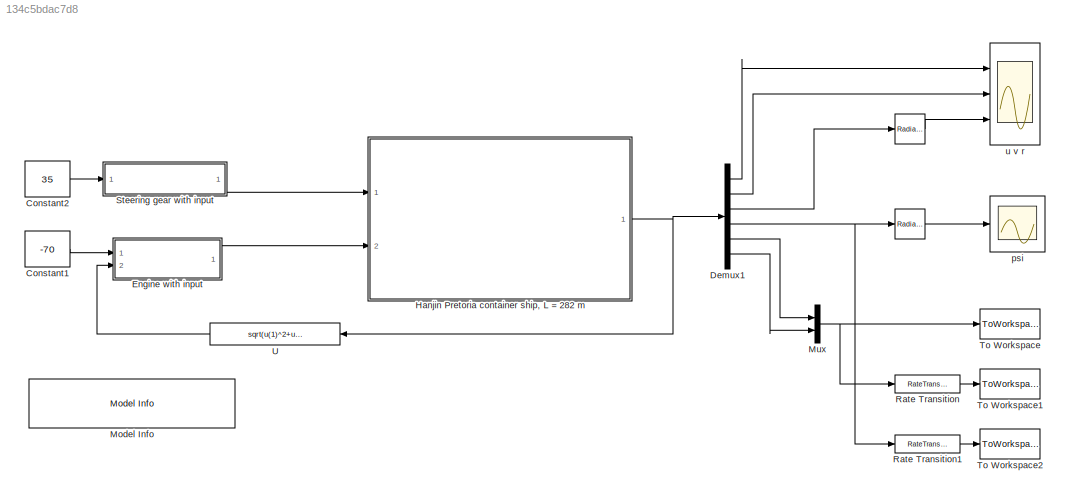
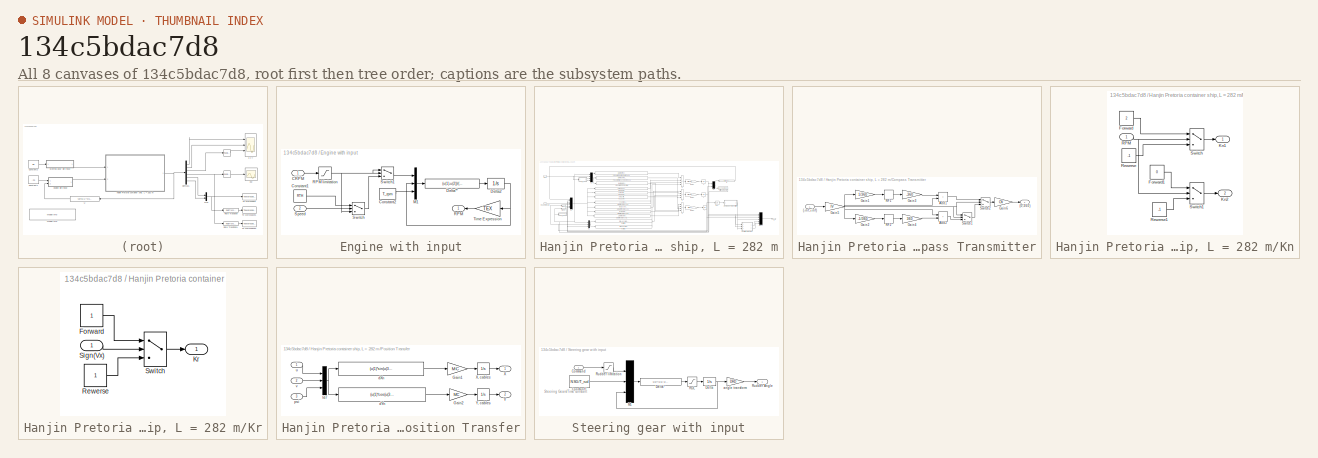
[diagram: thumbnail index - all 8 canvases of the model, root first then tree order]
MODEL slx_134c5bdac7d8
KIND model
CONFIG AbsTol = 1e-5
CONFIG EnableMultiTasking = on
CONFIG FixedStep = 0.5
CONFIG InitFcn = dataPretoria;
CONFIG MaxStep = auto
CONFIG MinStep = auto
CONFIG PreLoadFcn = TT=40;\n
CONFIG RelTol = 1e-6
CONFIG SampleTimeConstraint = Unconstrained
CONFIG SolverName = ode4
CONFIG StartTime = 0.0
CONFIG StopFcn = shipsOrient;\n\n\n
CONFIG StopTime = 1500
BLOCK [Reference]    REF=simulink_extras/Transformations/Radians
to Degrees
  Ports = [1, 1]
  SourceBlock = simulink_extras/Transformations/Radians\nto Degrees
  SourceProductBaseCode = SL
  SourceType = RadiansToDegrees
BLOCK [Reference]        REF=simulink_extras/Transformations/Radians
to Degrees
  Ports = [1, 1]
  SourceBlock = simulink_extras/Transformations/Radians\nto Degrees
  SourceProductBaseCode = SL
  SourceType = RadiansToDegrees
BLOCK [Constant] Constant1
  Value = -70
BLOCK [Constant] Constant2
  Value = 35
BLOCK [Demux] Demux1
  Outputs = 6
  Ports = [1, 6]
BLOCK [SubSystem] Engine with input
  AncestorBlock = Maneuvering/Control complexes/Engine with input
  Ports = [2, 1]
  RequestExecContextInheritance = off
BLOCK [Inport] Engine with input/CRPM
BLOCK [Constant] Engine with input/Constant1
  Value = RTH
BLOCK [Constant] Engine with input/Constant2
  Value = T_rpm
BLOCK [Fcn] Engine with input/Delta**
  Expr = (u(1)-u(2))/(u(3)*60/u(2))
BLOCK [Integrator] Engine with input/Delta2
  InitialCondition = IRPM
  LimitOutput = on
  LowerSaturationLimit = MinRPM
  Ports = [1, 1]
  UpperSaturationLimit = MaxRPM
BLOCK [Mux] Engine with input/M1
  DisplayOption = bar
  Inputs = 3
  Ports = [3, 1]
BLOCK [Outport] Engine with input/RPM
BLOCK [Saturate] Engine with input/RPM limitation
  LowerLimit = MinRPM
  UpperLimit = MaxRPM
BLOCK [Inport] Engine with input/Speed
  Port = 2
BLOCK [Switch] Engine with input/Switch
  InputSameDT = off
  SaturateOnIntegerOverflow = off
  Threshold = RevV
BLOCK [Switch] Engine with input/Switch1
  InputSameDT = off
  SaturateOnIntegerOverflow = off
BLOCK [Gain] Engine with input/Time Expression
  Gain = TEX
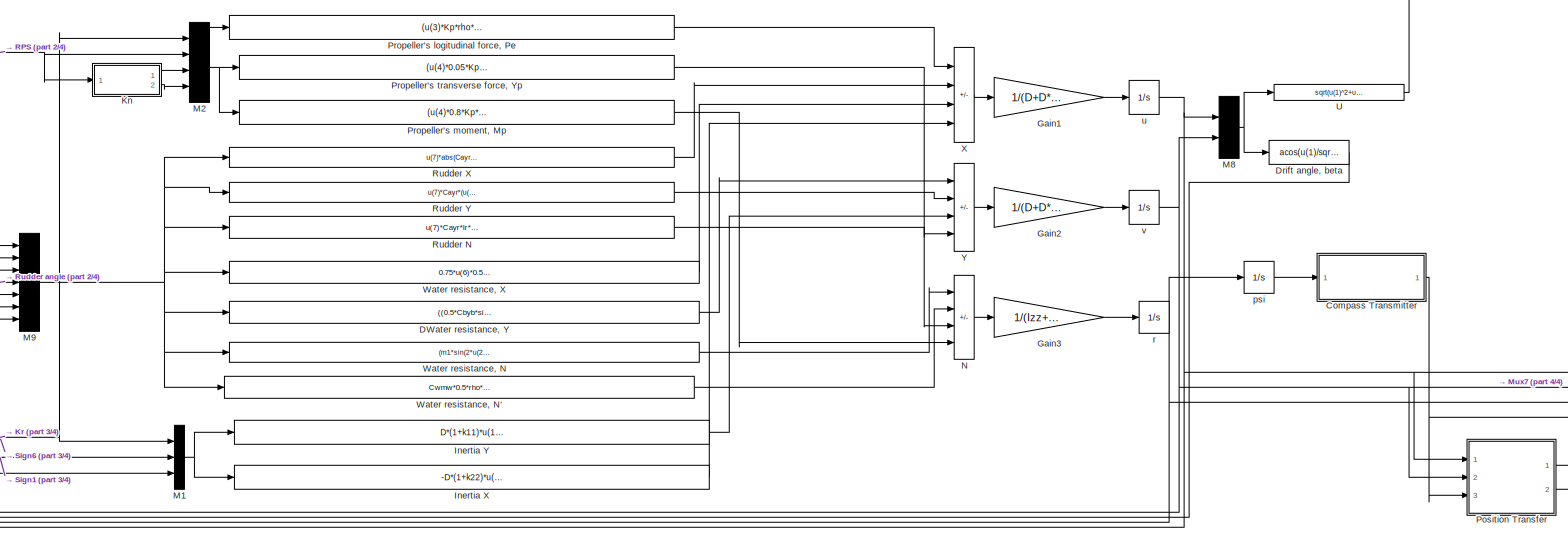
[diagram: Hanjin Pretoria container ship, L = 282 m - part 1/4, most of the canvas]
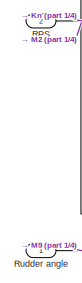
[diagram: Hanjin Pretoria container ship, L = 282 m - part 2/4, middle left region]
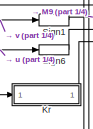
[diagram: Hanjin Pretoria container ship, L = 282 m - part 3/4, middle left region]
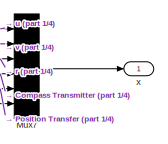
[diagram: Hanjin Pretoria container ship, L = 282 m - part 4/4, bottom right region]
BLOCK [SubSystem] Hanjin Pretoria container ship, L = 282 m
  Ports = [2, 1]
  RequestExecContextInheritance = off
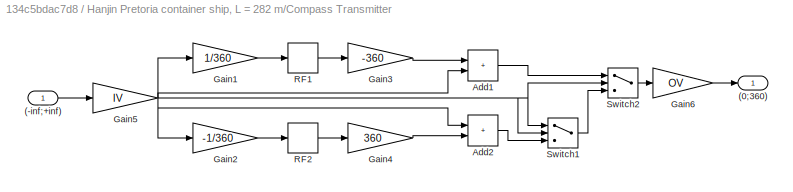
BLOCK [SubSystem] Hanjin Pretoria container ship, L = 282 m/Compass Transmitter
  Ports = [1, 1]
  RequestExecContextInheritance = off
BLOCK [Inport] Hanjin Pretoria container ship, L = 282 m/Compass Transmitter/(-inf;+inf)
BLOCK [Outport] Hanjin Pretoria container ship, L = 282 m/Compass Transmitter/(0;360)
BLOCK [Sum] Hanjin Pretoria container ship, L = 282 m/Compass Transmitter/Add1
  IconShape = rectangular
  Ports = [2, 1]
BLOCK [Sum] Hanjin Pretoria container ship, L = 282 m/Compass Transmitter/Add2
  IconShape = rectangular
  Ports = [2, 1]
BLOCK [Gain] Hanjin Pretoria container ship, L = 282 m/Compass Transmitter/Gain1
  Gain = 1/360
BLOCK [Gain] Hanjin Pretoria container ship, L = 282 m/Compass Transmitter/Gain2
  Gain = -1/360
BLOCK [Gain] Hanjin Pretoria container ship, L = 282 m/Compass Transmitter/Gain3
  Gain = -360
BLOCK [Gain] Hanjin Pretoria container ship, L = 282 m/Compass Transmitter/Gain4
  Gain = 360
BLOCK [Gain] Hanjin Pretoria container ship, L = 282 m/Compass Transmitter/Gain5
  Gain = IV
BLOCK [Gain] Hanjin Pretoria container ship, L = 282 m/Compass Transmitter/Gain6
  Gain = OV
BLOCK [Rounding] Hanjin Pretoria container ship, L = 282 m/Compass Transmitter/RF1
BLOCK [Rounding] Hanjin Pretoria container ship, L = 282 m/Compass Transmitter/RF2
  Operator = ceil
BLOCK [Switch] Hanjin Pretoria container ship, L = 282 m/Compass Transmitter/Switch1
  InputSameDT = off
  SaturateOnIntegerOverflow = off
BLOCK [Switch] Hanjin Pretoria container ship, L = 282 m/Compass Transmitter/Switch2
  Criteria = u2 > Threshold
  InputSameDT = off
  SaturateOnIntegerOverflow = off
  Threshold = 360
BLOCK [Fcn] Hanjin Pretoria container ship, L = 282 m/DWater resistance, Y
  Expr = ((0.5*Cbyb*sin(2*u(2))*cos(u(2))+u(5)*c2*sin(u(2))^2+u(5)*c3*sin(2*u(2))^4))*0.5*rho*(u(1)^2)*Ald
BLOCK [Fcn] Hanjin Pretoria container ship, L = 282 m/Drift angle, beta
  Expr = acos(u(1)/sqrt(u(1)^2+u(2)^2))*(u(2)/abs(u(2)))
BLOCK [Gain] Hanjin Pretoria container ship, L = 282 m/Gain1
  Gain = 1/(D+D*k11)
BLOCK [Gain] Hanjin Pretoria container ship, L = 282 m/Gain2
  Gain = 1/(D+D*k22)
BLOCK [Gain] Hanjin Pretoria container ship, L = 282 m/Gain3
  Gain = 1/(Izz+Izz*k66)
BLOCK [Fcn] Hanjin Pretoria container ship, L = 282 m/Inertia X
  Expr = -D*(1+k22)*u(2)*u(3)
BLOCK [Fcn] Hanjin Pretoria container ship, L = 282 m/Inertia Y
  Expr = D*(1+k11)*u(1)*u(3)
BLOCK [SubSystem] Hanjin Pretoria container ship, L = 282 m/Kn
  Ports = [1, 2]
  RequestExecContextInheritance = off
BLOCK [Constant] Hanjin Pretoria container ship, L = 282 m/Kn/Forward
  Value = 2
BLOCK [Constant] Hanjin Pretoria container ship, L = 282 m/Kn/Forward1
  Value = 0
BLOCK [Outport] Hanjin Pretoria container ship, L = 282 m/Kn/Kn1
BLOCK [Outport] Hanjin Pretoria container ship, L = 282 m/Kn/Kn2
  Port = 2
BLOCK [Inport] Hanjin Pretoria container ship, L = 282 m/Kn/RPM
BLOCK [Constant] Hanjin Pretoria container ship, L = 282 m/Kn/Rewerse
  Value = -1
BLOCK [Constant] Hanjin Pretoria container ship, L = 282 m/Kn/Rewerse1
  Value = -1
BLOCK [Switch] Hanjin Pretoria container ship, L = 282 m/Kn/Switch
  Criteria = u2 > Threshold
  InputSameDT = off
  SaturateOnIntegerOverflow = off
BLOCK [Switch] Hanjin Pretoria container ship, L = 282 m/Kn/Switch1
  Criteria = u2 > Threshold
  InputSameDT = off
  SaturateOnIntegerOverflow = off
BLOCK [SubSystem] Hanjin Pretoria container ship, L = 282 m/Kr
  Ports = [1, 1]
  RequestExecContextInheritance = off
BLOCK [Constant] Hanjin Pretoria container ship, L = 282 m/Kr/Forward
BLOCK [Outport] Hanjin Pretoria container ship, L = 282 m/Kr/Kr
BLOCK [Constant] Hanjin Pretoria container ship, L = 282 m/Kr/Rewerse
BLOCK [Inport] Hanjin Pretoria container ship, L = 282 m/Kr/Sign(Vx)
BLOCK [Switch] Hanjin Pretoria container ship, L = 282 m/Kr/Switch
  Criteria = u2 > Threshold
  InputSameDT = off
  SaturateOnIntegerOverflow = off
BLOCK [Mux] Hanjin Pretoria container ship, L = 282 m/M1
  DisplayOption = bar
  Inputs = 3
  Ports = [3, 1]
BLOCK [Mux] Hanjin Pretoria container ship, L = 282 m/M2
  DisplayOption = bar
  Ports = [4, 1]
BLOCK [Mux] Hanjin Pretoria container ship, L = 282 m/M8
  DisplayOption = bar
  Inputs = 2
  Ports = [2, 1]
BLOCK [Mux] Hanjin Pretoria container ship, L = 282 m/M9
  DisplayOption = bar
  Inputs = 7
  Ports = [7, 1]
BLOCK [Mux] Hanjin Pretoria container ship, L = 282 m/Mux7
  DisplayOption = bar
  Inputs = 6
  Ports = [6, 1]
BLOCK [Sum] Hanjin Pretoria container ship, L = 282 m/N
  IconShape = rectangular
  InputSameDT = on
  Inputs = +-++
  OutDataTypeStr = Inherit: Same as first input
  Ports = [4, 1]
  SaturateOnIntegerOverflow = on
BLOCK [SubSystem] Hanjin Pretoria container ship, L = 282 m/Position Transfer
  Ports = [3, 2]
  RequestExecContextInheritance = off
BLOCK [Gain] Hanjin Pretoria container ship, L = 282 m/Position Transfer/Gain1
  Gain = MC
BLOCK [Gain] Hanjin Pretoria container ship, L = 282 m/Position Transfer/Gain2
  Gain = MC
BLOCK [Mux] Hanjin Pretoria container ship, L = 282 m/Position Transfer/Id7
  DisplayOption = bar
  Inputs = 3
  Ports = [3, 1]
BLOCK [Outport] Hanjin Pretoria container ship, L = 282 m/Position Transfer/X
BLOCK [Integrator] Hanjin Pretoria container ship, L = 282 m/Position Transfer/X, cables
  InitialCondition = Xin
  Ports = [1, 1]
BLOCK [Outport] Hanjin Pretoria container ship, L = 282 m/Position Transfer/Y
  Port = 2
BLOCK [Integrator] Hanjin Pretoria container ship, L = 282 m/Position Transfer/Y, cables
  InitialCondition = Yin
  Ports = [1, 1]
BLOCK [Fcn] Hanjin Pretoria container ship, L = 282 m/Position Transfer/dXn
  Expr = (u(1)*sin(u(3))-u(2)*cos(u(3)))
BLOCK [Fcn] Hanjin Pretoria container ship, L = 282 m/Position Transfer/dYn
  Expr = (u(1)*cos(u(3))+u(2)*sin(u(3)))
BLOCK [Inport] Hanjin Pretoria container ship, L = 282 m/Position Transfer/psi
  Port = 3
BLOCK [Inport] Hanjin Pretoria container ship, L = 282 m/Position Transfer/u
BLOCK [Inport] Hanjin Pretoria container ship, L = 282 m/Position Transfer/v
  Port = 2
BLOCK [Fcn] Hanjin Pretoria container ship, L = 282 m/Propeller's logitudinal force, Pe
  Expr = (u(3)*Kp*rho*(u(2)^2)*Dp^4)
BLOCK [Fcn] Hanjin Pretoria container ship, L = 282 m/Propeller's moment, Mp
  Expr = (u(4)*0.8*Kp*rho*(u(2)^2)*Dp^5)
BLOCK [Fcn] Hanjin Pretoria container ship, L = 282 m/Propeller's transverse force, Yp
  Expr = (u(4)*0.05*Kp*rho*(u(2)^2)*Dp^4)
BLOCK [Inport] Hanjin Pretoria container ship, L = 282 m/RPS
  Port = 2
BLOCK [Fcn] Hanjin Pretoria container ship, L = 282 m/Rudder N
  Expr = u(7)*Cayr*Ir*(u(4)-Xe*(u(2)+Irm*L*u(3)/u(1)))*0.5*rho*(u(1)^2)*Are
BLOCK [Fcn] Hanjin Pretoria container ship, L = 282 m/Rudder X
  Expr = u(7)*abs(Cayr*(u(4)-Xe*(u(2)+Irm*L*u(3)/u(1)))*0.5*rho*(u(1)^2)*Are*tan(u(4)))
BLOCK [Fcn] Hanjin Pretoria container ship, L = 282 m/Rudder Y
  Expr = u(7)*Cayr*(u(4)-Xe*(u(2)+Irm*L*u(3)/u(1)))*0.5*rho*(u(1)^2)*Are
BLOCK [Inport] Hanjin Pretoria container ship, L = 282 m/Rudder angle
BLOCK [Signum] Hanjin Pretoria container ship, L = 282 m/Sign1
BLOCK [Signum] Hanjin Pretoria container ship, L = 282 m/Sign6
BLOCK [Fcn] Hanjin Pretoria container ship, L = 282 m/U
  Expr = sqrt(u(1)^2+u(2)^2)
BLOCK [Fcn] Hanjin Pretoria container ship, L = 282 m/Water resistance, N
  Expr = (m1*sin(2*u(2))+m2*sin(u(2))+m3*sin(2*u(2))^3+u(5)*m4*sin(2*u(2))^4)*0.5*rho*(u(1)^2)*Ald*L
BLOCK [Fcn] Hanjin Pretoria container ship, L = 282 m/Water resistance, N'
  Expr = Cwmw*0.5*rho*u(1)*Ald*u(3)*L^2
BLOCK [Fcn] Hanjin Pretoria container ship, L = 282 m/Water resistance, X
  Expr = 0.75*u(6)*0.5*Cx0*abs(cos(u(2)))*rho*Ald*(u(1)^2)
BLOCK [Sum] Hanjin Pretoria container ship, L = 282 m/X
  IconShape = rectangular
  InputSameDT = on
  Inputs = +--+
  OutDataTypeStr = Inherit: Same as first input
  Ports = [4, 1]
  SaturateOnIntegerOverflow = on
BLOCK [Sum] Hanjin Pretoria container ship, L = 282 m/Y
  IconShape = rectangular
  InputSameDT = on
  Inputs = -+++
  OutDataTypeStr = Inherit: Same as first input
  Ports = [4, 1]
  SaturateOnIntegerOverflow = on
BLOCK [Integrator] Hanjin Pretoria container ship, L = 282 m/psi
  AbsoluteTolerance = 1
  InitialCondition = IC(4)
  LowerSaturationLimit = -0.87266
  Ports = [1, 1]
  UpperSaturationLimit = 0.87266
BLOCK [Integrator] Hanjin Pretoria container ship, L = 282 m/r
  AbsoluteTolerance = 1
  InitialCondition = IC(3)
  LowerSaturationLimit = -0.87266
  Ports = [1, 1]
  UpperSaturationLimit = 0.87266
BLOCK [Integrator] Hanjin Pretoria container ship, L = 282 m/u
  AbsoluteTolerance = 1
  InitialCondition = IC(1)
  LowerSaturationLimit = -1
  Ports = [1, 1]
  UpperSaturationLimit = 7.5
BLOCK [Integrator] Hanjin Pretoria container ship, L = 282 m/v
  AbsoluteTolerance = 1
  InitialCondition = IC(2)
  LowerSaturationLimit = -1
  Ports = [1, 1]
  UpperSaturationLimit = 7.5
BLOCK [Outport] Hanjin Pretoria container ship, L = 282 m/x
BLOCK [Reference] Model Info  REF=simulink/Model-Wide
Utilities/Model Info
  Ports = []
  SourceBlock = simulink/Model-Wide\nUtilities/Model Info
  SourceProductBaseCode = SL
  SourceType = CMBlock
BLOCK [Mux] Mux
  DisplayOption = bar
  Inputs = 2
  Ports = [2, 1]
BLOCK [RateTransition] Rate Transition
  OutPortSampleTime = TT
BLOCK [RateTransition] Rate Transition1
  OutPortSampleTime = TT
BLOCK [SubSystem] Steering gear with input
  AncestorBlock = Maneuvering/Control complexes/Steering Gear with input
  Ports = [1, 1]
  RequestExecContextInheritance = off
BLOCK [Inport] Steering gear with input/Command
BLOCK [Constant] Steering gear with input/Constant1
  Value = NSG/T_rud
BLOCK [Integrator] Steering gear with input/Delta
  InitialCondition = IRud
  LimitOutput = on
  LowerSaturationLimit = -MR
  Ports = [1, 1]
  UpperSaturationLimit = MR
BLOCK [Fcn] Steering gear with input/Delta*
  Expr = u(2)*(u(1)-u(3))
  SampleTime = ST
BLOCK [Mux] Steering gear with input/M1
  DisplayOption = bar
  Inputs = 3
  Ports = [3, 1]
BLOCK [Saturate] Steering gear with input/RDL
  LowerLimit = -MRS
  SampleTime = ST
  UpperLimit = MRS
BLOCK [Outport] Steering gear with input/Rudder Angle
BLOCK [Saturate] Steering gear with input/Rudder limitation
  LowerLimit = -MR
  SampleTime = ST
  UpperLimit = MR
BLOCK [Gain] Steering gear with input/angle transform
  Gain = DRD
  SampleTime = ST
BLOCK [ToWorkspace] To Workspace
  MaxDataPoints = inf
  Ports = [1]
  SampleTime = -1
  VariableName = XY
BLOCK [ToWorkspace] To Workspace1
  MaxDataPoints = inf
  Ports = [1]
  SampleTime = TT
  VariableName = XY1
BLOCK [ToWorkspace] To Workspace2
  MaxDataPoints = inf
  Ports = [1]
  SampleTime = TT
  VariableName = K
BLOCK [Fcn] U
  Expr = sqrt(u(1)^2+u(2)^2)
  NameLocation = top
BLOCK [Scope] psi
  Floating = off
  NumInputPorts = 1
  Ports = [1]
  ScopeSpecificationString = Simulink.scopes.TimeScopeBlockCfg('CurrentConfiguration', extmgr.ConfigurationSet(extmgr.Configuration('Core','General UI',true),extmgr.Configuration('Core','Source UI',true),extmgr.Configuration('Sources','WiredSimulink',true,'DataLoggingSaveFormat','StructureWithTime','DataLoggingLimitDataPoints',true,'DataLoggingDecimation','1','DataLoggingDecimateData',true),extmgr.Configuration('Visuals','Tim...<+1695ch>
BLOCK [Scope] u v r
  Floating = off
  NumInputPorts = 3
  Ports = [3]
  ScopeSpecificationString = Simulink.scopes.TimeScopeBlockCfg('CurrentConfiguration', extmgr.ConfigurationSet(extmgr.Configuration('Core','General UI',true),extmgr.Configuration('Core','Source UI',true),extmgr.Configuration('Sources','WiredSimulink',true,'DataLoggingVariableName','ScopeData1','DataLoggingSaveFormat','StructureWithTime','DataLoggingLimitDataPoints',true,'DataLoggingDecimation','1','DataLoggingDecimateData',tr...<+2981ch>
ANNOTATION Steering gear with input: Steering Gears/Time constant
LINE      :1 -> psi:1
LINE  :1 -> u v r:3
LINE Constant1:1 -> Engine with input:1
LINE Constant2:1 -> Steering gear with input:1
LINE Demux1:1 -> u v r:1
LINE Demux1:2 -> u v r:2
LINE Demux1:3 ->  :1
NET Demux1:4 ->      :1, Rate Transition1:1
LINE Demux1:5 -> Mux:1
LINE Demux1:6 -> Mux:2
LINE Engine with input:1 -> Hanjin Pretoria container ship, L = 282 m:2
LINE Hanjin Pretoria container ship, L = 282 m/Compass Transmitter/(-inf;+inf):1 -> Hanjin Pretoria container ship, L = 282 m/Compass Transmitter/Gain5:1
LINE Hanjin Pretoria container ship, L = 282 m/Compass Transmitter/Add1:1 -> Hanjin Pretoria container ship, L = 282 m/Compass Transmitter/Switch2:1
LINE Hanjin Pretoria container ship, L = 282 m/Compass Transmitter/Add2:1 -> Hanjin Pretoria container ship, L = 282 m/Compass Transmitter/Switch1:3
LINE Hanjin Pretoria container ship, L = 282 m/Compass Transmitter/Gain1:1 -> Hanjin Pretoria container ship, L = 282 m/Compass Transmitter/RF1:1
LINE Hanjin Pretoria container ship, L = 282 m/Compass Transmitter/Gain2:1 -> Hanjin Pretoria container ship, L = 282 m/Compass Transmitter/RF2:1
LINE Hanjin Pretoria container ship, L = 282 m/Compass Transmitter/Gain3:1 -> Hanjin Pretoria container ship, L = 282 m/Compass Transmitter/Add1:1
LINE Hanjin Pretoria container ship, L = 282 m/Compass Transmitter/Gain4:1 -> Hanjin Pretoria container ship, L = 282 m/Compass Transmitter/Add2:2
NET Hanjin Pretoria container ship, L = 282 m/Compass Transmitter/Gain5:1 -> Hanjin Pretoria container ship, L = 282 m/Compass Transmitter/Add1:2, Hanjin Pretoria container ship, L = 282 m/Compass Transmitter/Add2:1, Hanjin Pretoria container ship, L = 282 m/Compass Transmitter/Gain1:1, Hanjin Pretoria container ship, L = 282 m/Compass Transmitter/Gain2:1, Hanjin Pretoria container ship, L = 282 m/Compass Transmitter/Switch1:1, Hanjin Pretoria container ship, L = 282 m/Compass Transmitter/Switch1:2, Hanjin Pretoria container ship, L = 282 m/Compass Transmitter/Switch2:2
LINE Hanjin Pretoria container ship, L = 282 m/Compass Transmitter/Gain6:1 -> Hanjin Pretoria container ship, L = 282 m/Compass Transmitter/(0;360):1
LINE Hanjin Pretoria container ship, L = 282 m/Compass Transmitter/RF1:1 -> Hanjin Pretoria container ship, L = 282 m/Compass Transmitter/Gain3:1
LINE Hanjin Pretoria container ship, L = 282 m/Compass Transmitter/RF2:1 -> Hanjin Pretoria container ship, L = 282 m/Compass Transmitter/Gain4:1
LINE Hanjin Pretoria container ship, L = 282 m/Compass Transmitter/Switch1:1 -> Hanjin Pretoria container ship, L = 282 m/Compass Transmitter/Switch2:3
LINE Hanjin Pretoria container ship, L = 282 m/Compass Transmitter/Switch2:1 -> Hanjin Pretoria container ship, L = 282 m/Compass Transmitter/Gain6:1
NET Hanjin Pretoria container ship, L = 282 m/Compass Transmitter:1 -> Hanjin Pretoria container ship, L = 282 m/Mux7:4, Hanjin Pretoria container ship, L = 282 m/Position Transfer:3
LINE Hanjin Pretoria container ship, L = 282 m/DWater resistance, Y:1 -> Hanjin Pretoria container ship, L = 282 m/Y:1
LINE Hanjin Pretoria container ship, L = 282 m/Drift angle, beta:1 -> Hanjin Pretoria container ship, L = 282 m/M9:2
LINE Hanjin Pretoria container ship, L = 282 m/Gain1:1 -> Hanjin Pretoria container ship, L = 282 m/u:1
LINE Hanjin Pretoria container ship, L = 282 m/Gain2:1 -> Hanjin Pretoria container ship, L = 282 m/v:1
LINE Hanjin Pretoria container ship, L = 282 m/Gain3:1 -> Hanjin Pretoria container ship, L = 282 m/r:1
LINE Hanjin Pretoria container ship, L = 282 m/Inertia X:1 -> Hanjin Pretoria container ship, L = 282 m/X:4
LINE Hanjin Pretoria container ship, L = 282 m/Inertia Y:1 -> Hanjin Pretoria container ship, L = 282 m/Y:3
LINE Hanjin Pretoria container ship, L = 282 m/Kn/Forward1:1 -> Hanjin Pretoria container ship, L = 282 m/Kn/Switch1:1
LINE Hanjin Pretoria container ship, L = 282 m/Kn/Forward:1 -> Hanjin Pretoria container ship, L = 282 m/Kn/Switch:1
NET Hanjin Pretoria container ship, L = 282 m/Kn/RPM:1 -> Hanjin Pretoria container ship, L = 282 m/Kn/Switch1:2, Hanjin Pretoria container ship, L = 282 m/Kn/Switch:2
LINE Hanjin Pretoria container ship, L = 282 m/Kn/Rewerse1:1 -> Hanjin Pretoria container ship, L = 282 m/Kn/Switch1:3
LINE Hanjin Pretoria container ship, L = 282 m/Kn/Rewerse:1 -> Hanjin Pretoria container ship, L = 282 m/Kn/Switch:3
LINE Hanjin Pretoria container ship, L = 282 m/Kn/Switch1:1 -> Hanjin Pretoria container ship, L = 282 m/Kn/Kn2:1
LINE Hanjin Pretoria container ship, L = 282 m/Kn/Switch:1 -> Hanjin Pretoria container ship, L = 282 m/Kn/Kn1:1
LINE Hanjin Pretoria container ship, L = 282 m/Kn:1 -> Hanjin Pretoria container ship, L = 282 m/M2:3
LINE Hanjin Pretoria container ship, L = 282 m/Kn:2 -> Hanjin Pretoria container ship, L = 282 m/M2:4
LINE Hanjin Pretoria container ship, L = 282 m/Kr/Forward:1 -> Hanjin Pretoria container ship, L = 282 m/Kr/Switch:1
LINE Hanjin Pretoria container ship, L = 282 m/Kr/Rewerse:1 -> Hanjin Pretoria container ship, L = 282 m/Kr/Switch:3
LINE Hanjin Pretoria container ship, L = 282 m/Kr/Sign(Vx):1 -> Hanjin Pretoria container ship, L = 282 m/Kr/Switch:2
LINE Hanjin Pretoria container ship, L = 282 m/Kr/Switch:1 -> Hanjin Pretoria container ship, L = 282 m/Kr/Kr:1
LINE Hanjin Pretoria container ship, L = 282 m/Kr:1 -> Hanjin Pretoria container ship, L = 282 m/M9:7
NET Hanjin Pretoria container ship, L = 282 m/M1:1 -> Hanjin Pretoria container ship, L = 282 m/Inertia X:1, Hanjin Pretoria container ship, L = 282 m/Inertia Y:1
NET Hanjin Pretoria container ship, L = 282 m/M2:1 -> Hanjin Pretoria container ship, L = 282 m/Propeller's logitudinal force, Pe:1, Hanjin Pretoria container ship, L = 282 m/Propeller's moment, Mp:1, Hanjin Pretoria container ship, L = 282 m/Propeller's transverse force, Yp:1
NET Hanjin Pretoria container ship, L = 282 m/M8:1 -> Hanjin Pretoria container ship, L = 282 m/Drift angle, beta:1, Hanjin Pretoria container ship, L = 282 m/U:1
NET Hanjin Pretoria container ship, L = 282 m/M9:1 -> Hanjin Pretoria container ship, L = 282 m/DWater resistance, Y:1, Hanjin Pretoria container ship, L = 282 m/Rudder N:1, Hanjin Pretoria container ship, L = 282 m/Rudder X:1, Hanjin Pretoria container ship, L = 282 m/Rudder Y:1, Hanjin Pretoria container ship, L = 282 m/Water resistance, N':1, Hanjin Pretoria container ship, L = 282 m/Water resistance, N:1, Hanjin Pretoria container ship, L = 282 m/Water resistance, X:1
LINE Hanjin Pretoria container ship, L = 282 m/Mux7:1 -> Hanjin Pretoria container ship, L = 282 m/x:1
LINE Hanjin Pretoria container ship, L = 282 m/N:1 -> Hanjin Pretoria container ship, L = 282 m/Gain3:1
LINE Hanjin Pretoria container ship, L = 282 m/Position Transfer/Gain1:1 -> Hanjin Pretoria container ship, L = 282 m/Position Transfer/X, cables:1
LINE Hanjin Pretoria container ship, L = 282 m/Position Transfer/Gain2:1 -> Hanjin Pretoria container ship, L = 282 m/Position Transfer/Y, cables:1
NET Hanjin Pretoria container ship, L = 282 m/Position Transfer/Id7:1 -> Hanjin Pretoria container ship, L = 282 m/Position Transfer/dXn:1, Hanjin Pretoria container ship, L = 282 m/Position Transfer/dYn:1
LINE Hanjin Pretoria container ship, L = 282 m/Position Transfer/X, cables:1 -> Hanjin Pretoria container ship, L = 282 m/Position Transfer/X:1
LINE Hanjin Pretoria container ship, L = 282 m/Position Transfer/Y, cables:1 -> Hanjin Pretoria container ship, L = 282 m/Position Transfer/Y:1
LINE Hanjin Pretoria container ship, L = 282 m/Position Transfer/dXn:1 -> Hanjin Pretoria container ship, L = 282 m/Position Transfer/Gain1:1
LINE Hanjin Pretoria container ship, L = 282 m/Position Transfer/dYn:1 -> Hanjin Pretoria container ship, L = 282 m/Position Transfer/Gain2:1
LINE Hanjin Pretoria container ship, L = 282 m/Position Transfer/psi:1 -> Hanjin Pretoria container ship, L = 282 m/Position Transfer/Id7:3
LINE Hanjin Pretoria container ship, L = 282 m/Position Transfer/u:1 -> Hanjin Pretoria container ship, L = 282 m/Position Transfer/Id7:1
LINE Hanjin Pretoria container ship, L = 282 m/Position Transfer/v:1 -> Hanjin Pretoria container ship, L = 282 m/Position Transfer/Id7:2
LINE Hanjin Pretoria container ship, L = 282 m/Position Transfer:1 -> Hanjin Pretoria container ship, L = 282 m/Mux7:5
LINE Hanjin Pretoria container ship, L = 282 m/Position Transfer:2 -> Hanjin Pretoria container ship, L = 282 m/Mux7:6
LINE Hanjin Pretoria container ship, L = 282 m/Propeller's logitudinal force, Pe:1 -> Hanjin Pretoria container ship, L = 282 m/X:1
LINE Hanjin Pretoria container ship, L = 282 m/Propeller's moment, Mp:1 -> Hanjin Pretoria container ship, L = 282 m/N:4
LINE Hanjin Pretoria container ship, L = 282 m/Propeller's transverse force, Yp:1 -> Hanjin Pretoria container ship, L = 282 m/Y:4
NET Hanjin Pretoria container ship, L = 282 m/RPS:1 -> Hanjin Pretoria container ship, L = 282 m/Kn:1, Hanjin Pretoria container ship, L = 282 m/M2:2
LINE Hanjin Pretoria container ship, L = 282 m/Rudder N:1 -> Hanjin Pretoria container ship, L = 282 m/N:3
LINE Hanjin Pretoria container ship, L = 282 m/Rudder X:1 -> Hanjin Pretoria container ship, L = 282 m/X:2
LINE Hanjin Pretoria container ship, L = 282 m/Rudder Y:1 -> Hanjin Pretoria container ship, L = 282 m/Y:2
LINE Hanjin Pretoria container ship, L = 282 m/Rudder angle:1 -> Hanjin Pretoria container ship, L = 282 m/M9:4
LINE Hanjin Pretoria container ship, L = 282 m/Sign1:1 -> Hanjin Pretoria container ship, L = 282 m/M9:5
LINE Hanjin Pretoria container ship, L = 282 m/Sign6:1 -> Hanjin Pretoria container ship, L = 282 m/M9:6
LINE Hanjin Pretoria container ship, L = 282 m/U:1 -> Hanjin Pretoria container ship, L = 282 m/M9:1
LINE Hanjin Pretoria container ship, L = 282 m/Water resistance, N':1 -> Hanjin Pretoria container ship, L = 282 m/N:2
LINE Hanjin Pretoria container ship, L = 282 m/Water resistance, N:1 -> Hanjin Pretoria container ship, L = 282 m/N:1
LINE Hanjin Pretoria container ship, L = 282 m/Water resistance, X:1 -> Hanjin Pretoria container ship, L = 282 m/X:3
LINE Hanjin Pretoria container ship, L = 282 m/X:1 -> Hanjin Pretoria container ship, L = 282 m/Gain1:1
LINE Hanjin Pretoria container ship, L = 282 m/Y:1 -> Hanjin Pretoria container ship, L = 282 m/Gain2:1
LINE Hanjin Pretoria container ship, L = 282 m/psi:1 -> Hanjin Pretoria container ship, L = 282 m/Compass Transmitter:1
NET Hanjin Pretoria container ship, L = 282 m/r:1 -> Hanjin Pretoria container ship, L = 282 m/M1:3, Hanjin Pretoria container ship, L = 282 m/M9:3, Hanjin Pretoria container ship, L = 282 m/Mux7:3, Hanjin Pretoria container ship, L = 282 m/psi:1
NET Hanjin Pretoria container ship, L = 282 m/u:1 -> Hanjin Pretoria container ship, L = 282 m/Kr:1, Hanjin Pretoria container ship, L = 282 m/M1:1, Hanjin Pretoria container ship, L = 282 m/M2:1, Hanjin Pretoria container ship, L = 282 m/M8:1, Hanjin Pretoria container ship, L = 282 m/Mux7:1, Hanjin Pretoria container ship, L = 282 m/Position Transfer:1, Hanjin Pretoria container ship, L = 282 m/Sign6:1
NET Hanjin Pretoria container ship, L = 282 m/v:1 -> Hanjin Pretoria container ship, L = 282 m/M1:2, Hanjin Pretoria container ship, L = 282 m/M8:2, Hanjin Pretoria container ship, L = 282 m/Mux7:2, Hanjin Pretoria container ship, L = 282 m/Position Transfer:2, Hanjin Pretoria container ship, L = 282 m/Sign1:1
NET Hanjin Pretoria container ship, L = 282 m:1 -> Demux1:1, U:1
NET Mux:1 -> Rate Transition:1, To Workspace:1
LINE Rate Transition1:1 -> To Workspace2:1
LINE Rate Transition:1 -> To Workspace1:1
LINE Steering gear with input:1 -> Hanjin Pretoria container ship, L = 282 m:1
LINE U:1 -> Engine with input:2
note: NET lines group one-source signal fan-out (src -> all destinations, sorted); 1:1 wires keep LINE
